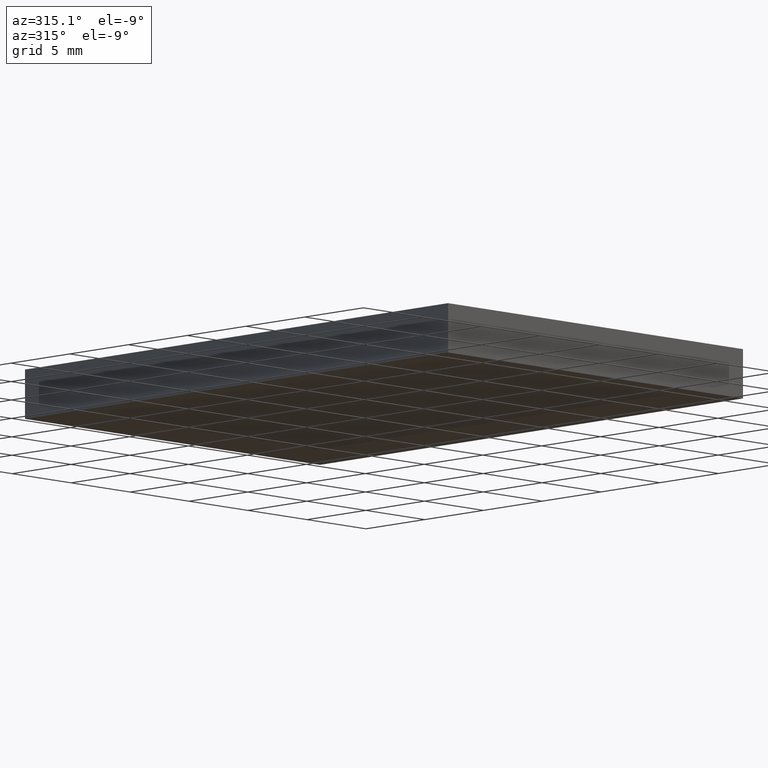
[diagram: clean part render]
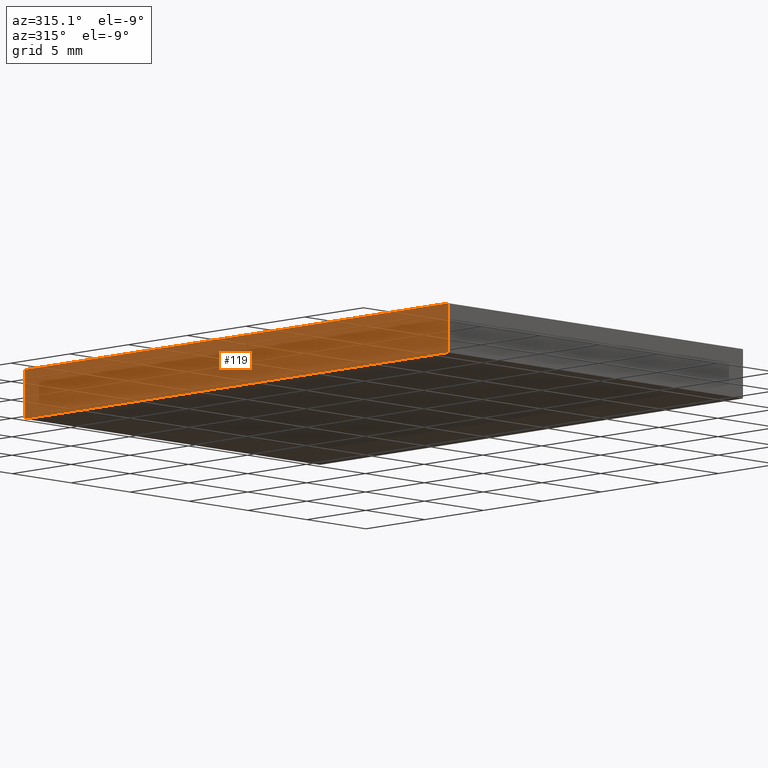
[diagram: same view with one face highlighted and labeled with its STEP entity id]
A machine part, auxiliary view. The second image highlights one B-rep face of the part: STEP entity #119.
In plain terms, the highlighted planar face has unit normal (1, 0, -0).
Its self-contained STEP definition (entity closure, byte-faithful):
#13 = VECTOR ( 'NONE', #24, 1000.000000000000000 ) ;
#22 = CARTESIAN_POINT ( 'NONE',  ( -6.351626016260158100, -28.47967479674797200, 3.000000000000000000 ) ) ;
#24 = DIRECTION ( 'NONE',  ( -0.0000000000000000000, -0.0000000000000000000, -1.000000000000000000 ) ) ;
#27 = CARTESIAN_POINT ( 'NONE',  ( -6.351626016260162500, 7.520325203252024700, 3.000000000000000000 ) ) ;
#42 = CARTESIAN_POINT ( 'NONE',  ( -6.351626016260162500, 7.520325203252024700, 3.000000000000000000 ) ) ;
#44 = VERTEX_POINT ( 'NONE', #165 ) ;
#57 = VECTOR ( 'NONE', #268, 1000.000000000000000 ) ;
#63 = LINE ( 'NONE', #42, #224 ) ;
#69 = LINE ( 'NONE', #290, #13 ) ;
#76 = DIRECTION ( 'NONE',  ( 1.000000000000000000, 1.204669080539449300E-016, -0.0000000000000000000 ) ) ;
#77 = EDGE_CURVE ( 'NONE', #180, #190, #108, .T. ) ;
#80 = ORIENTED_EDGE ( 'NONE', *, *, #88, .F. ) ;
#88 = EDGE_CURVE ( 'NONE', #174, #180, #63, .T. ) ;
#108 = LINE ( 'NONE', #197, #57 ) ;
#119 = ADVANCED_FACE ( 'NONE', ( #249 ), #291, .F. ) ;
#134 = LINE ( 'NONE', #248, #205 ) ;
#137 = EDGE_CURVE ( 'NONE', #44, #190, #134, .T. ) ;
#144 = ORIENTED_EDGE ( 'NONE', *, *, #77, .F. ) ;
#157 = EDGE_CURVE ( 'NONE', #174, #44, #69, .T. ) ;
#165 = CARTESIAN_POINT ( 'NONE',  ( -6.351626016260162500, 7.520325203252024700, 0.0000000000000000000 ) ) ;
#174 = VERTEX_POINT ( 'NONE', #27 ) ;
#176 = DIRECTION ( 'NONE',  ( 1.204669080539449300E-016, -1.000000000000000000, 0.0000000000000000000 ) ) ;
#180 = VERTEX_POINT ( 'NONE', #22 ) ;
#190 = VERTEX_POINT ( 'NONE', #202 ) ;
#193 = ORIENTED_EDGE ( 'NONE', *, *, #137, .T. ) ;
#197 = CARTESIAN_POINT ( 'NONE',  ( -6.351626016260158100, -28.47967479674797200, 3.000000000000000000 ) ) ;
#202 = CARTESIAN_POINT ( 'NONE',  ( -6.351626016260158100, -28.47967479674797200, 0.0000000000000000000 ) ) ;
#205 = VECTOR ( 'NONE', #176, 1000.000000000000000 ) ;
#209 = AXIS2_PLACEMENT_3D ( 'NONE', #315, #76, #272 ) ;
#222 = DIRECTION ( 'NONE',  ( 1.204669080539449300E-016, -1.000000000000000000, 0.0000000000000000000 ) ) ;
#224 = VECTOR ( 'NONE', #222, 1000.000000000000000 ) ;
#246 = EDGE_LOOP ( 'NONE', ( #193, #144, #80, #259 ) ) ;
#248 = CARTESIAN_POINT ( 'NONE',  ( -6.351626016260162500, 7.520325203252024700, 0.0000000000000000000 ) ) ;
#249 = FACE_OUTER_BOUND ( 'NONE', #246, .T. ) ;
#259 = ORIENTED_EDGE ( 'NONE', *, *, #157, .T. ) ;
#268 = DIRECTION ( 'NONE',  ( -0.0000000000000000000, -0.0000000000000000000, -1.000000000000000000 ) ) ;
#272 = DIRECTION ( 'NONE',  ( -1.204669080539449300E-016, 1.000000000000000000, 0.0000000000000000000 ) ) ;
#290 = CARTESIAN_POINT ( 'NONE',  ( -6.351626016260162500, 7.520325203252024700, 3.000000000000000000 ) ) ;
#291 = PLANE ( 'NONE',  #209 ) ;
#315 = CARTESIAN_POINT ( 'NONE',  ( -6.351626016260162500, 7.520325203252024700, 3.000000000000000000 ) ) ;